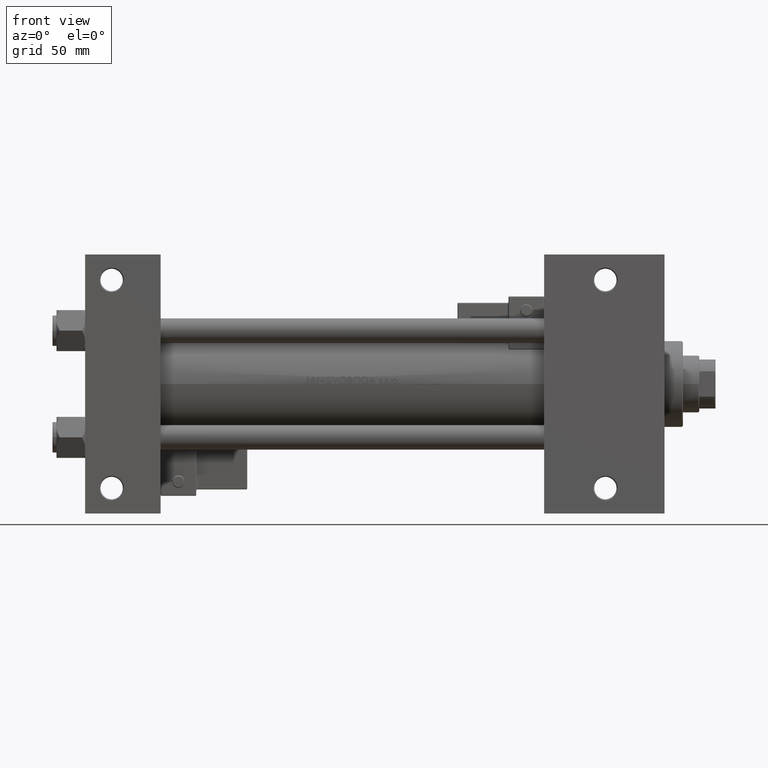
[diagram: clean part render]
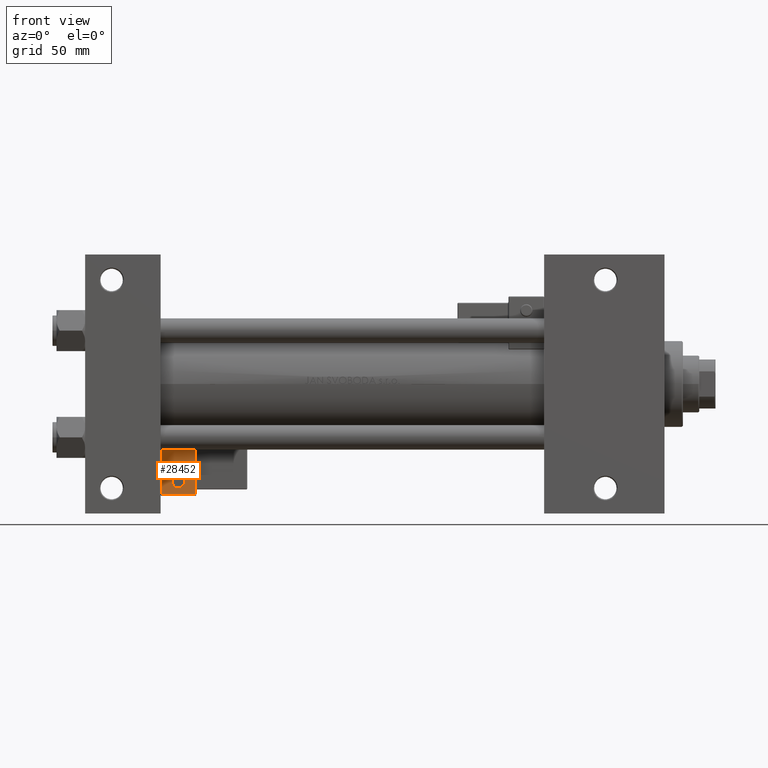
[diagram: same view with one face highlighted and labeled with its STEP entity id]
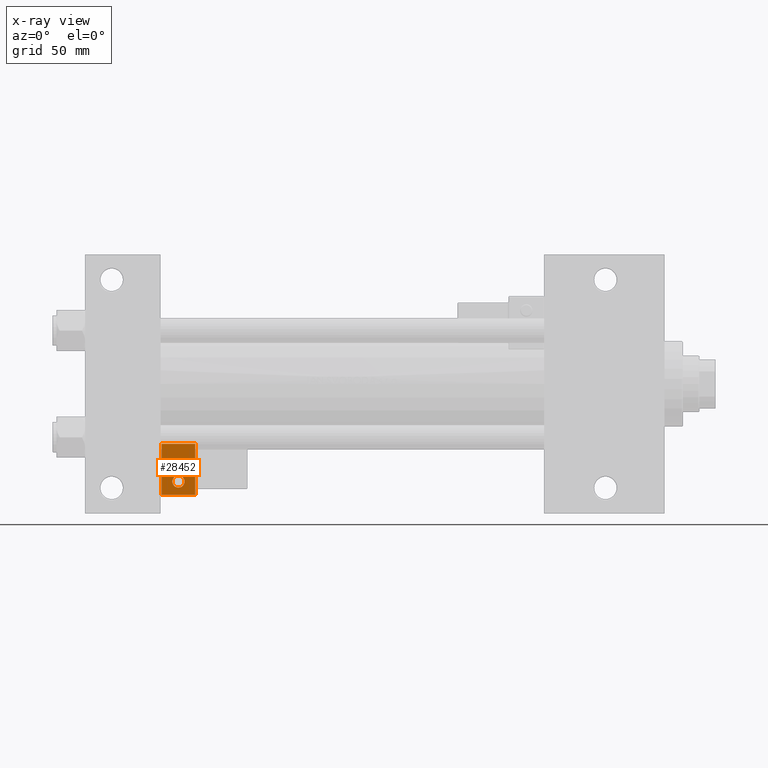
[diagram: x-ray of the same camera — body ghosted, the highlighted face saturated]
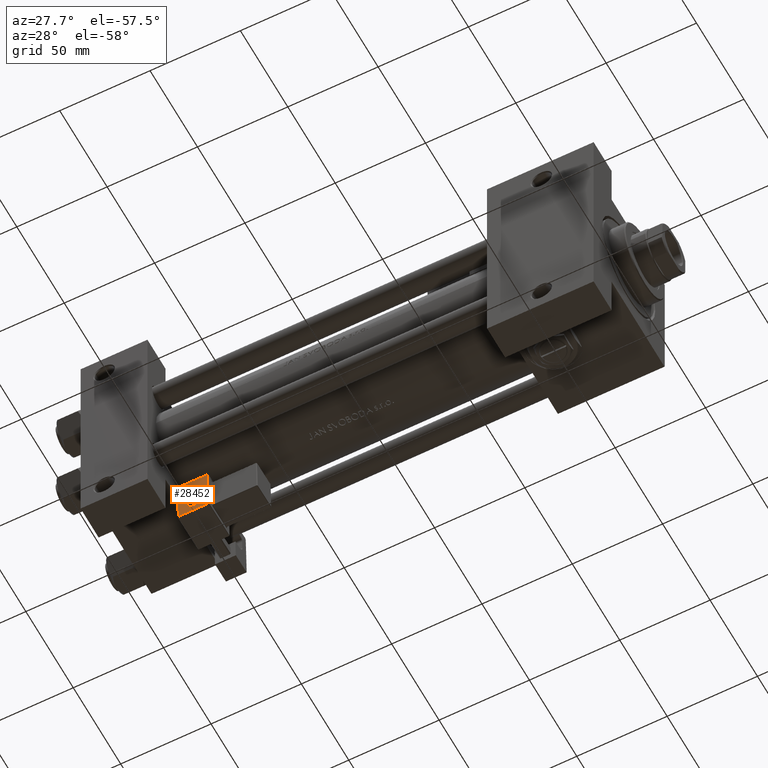
[diagram: same view with one face highlighted and labeled with its STEP entity id]
A machine part, front view. The second image highlights one B-rep face of the part: STEP entity #28452.
The next image is the same camera in x-ray: the body ghosted, the highlighted face saturated — about 0% of this face is hidden behind the body in this view.
A second angle (auxiliary view) of the same face is appended — the face is thin or edge-on in the first view.
In plain terms, the highlighted planar face has unit normal (0, 0.9994, 0.0353).
Its self-contained STEP definition (entity closure, byte-faithful):
#828 = CARTESIAN_POINT ( 'NONE',  ( 8.250000000000000000, -39.75000000000000000, 24.50000000000000000 ) ) ;
#1288 = ORIENTED_EDGE ( 'NONE', *, *, #46891, .T. ) ;
#1475 = AXIS2_PLACEMENT_3D ( 'NONE', #46820, #14535, #27021 ) ;
#2125 = EDGE_CURVE ( 'NONE', #7442, #15046, #28926, .T. ) ;
#2240 = DIRECTION ( 'NONE',  ( -1.000000000000000000, 0.000000000000000000, 1.982541115402065110E-16 ) ) ;
#2354 = LINE ( 'NONE', #6523, #48543 ) ;
#3287 = CARTESIAN_POINT ( 'NONE',  ( 0.000000000000000000, -39.75000000000000000, 0.000000000000000000 ) ) ;
#5459 = EDGE_CURVE ( 'NONE', #15046, #7442, #31666, .T. ) ;
#5887 = CARTESIAN_POINT ( 'NONE',  ( 4.857225732735059864E-15, -39.75000000000000000, 24.50000000000000000 ) ) ;
#6149 = LINE ( 'NONE', #5887, #11067 ) ;
#6523 = CARTESIAN_POINT ( 'NONE',  ( 0.000000000000000000, -39.75000000000000000, -0.5000000000000002220 ) ) ;
#6916 = LINE ( 'NONE', #31161, #11918 ) ;
#7442 = VERTEX_POINT ( 'NONE', #32532 ) ;
#8706 = VERTEX_POINT ( 'NONE', #12936 ) ;
#9316 = VERTEX_POINT ( 'NONE', #45052 ) ;
#10141 = EDGE_LOOP ( 'NONE', ( #40788, #24419, #1288, #16767 ) ) ;
#10163 = DIRECTION ( 'NONE',  ( 1.000000000000000000, 0.000000000000000000, 0.000000000000000000 ) ) ;
#11067 = VECTOR ( 'NONE', #2240, 1000.000000000000000 ) ;
#11728 = EDGE_CURVE ( 'NONE', #19395, #28036, #6149, .T. ) ;
#11817 = CARTESIAN_POINT ( 'NONE',  ( -4.336808689942017736E-16, -39.75000000000000000, 6.000000000000001776 ) ) ;
#11918 = VECTOR ( 'NONE', #27240, 1000.000000000000000 ) ;
#12936 = CARTESIAN_POINT ( 'NONE',  ( -8.250000000000003553, -39.75000000000000000, -0.5000000000000002220 ) ) ;
#13684 = LINE ( 'NONE', #17331, #37183 ) ;
#14083 = ORIENTED_EDGE ( 'NONE', *, *, #5459, .F. ) ;
#14535 = DIRECTION ( 'NONE',  ( -0.000000000000000000, -1.000000000000000000, -0.000000000000000000 ) ) ;
#15046 = VERTEX_POINT ( 'NONE', #28389 ) ;
#15244 = DIRECTION ( 'NONE',  ( 0.000000000000000000, 0.000000000000000000, 1.000000000000000000 ) ) ;
#16767 = ORIENTED_EDGE ( 'NONE', *, *, #24524, .T. ) ;
#17331 = CARTESIAN_POINT ( 'NONE',  ( 8.250000000000003553, -39.75000000000000000, 1.100882205908358986E-15 ) ) ;
#19190 = DIRECTION ( 'NONE',  ( 0.000000000000000000, 1.000000000000000000, 0.000000000000000000 ) ) ;
#19395 = VERTEX_POINT ( 'NONE', #828 ) ;
#20714 = AXIS2_PLACEMENT_3D ( 'NONE', #3287, #19190, #46812 ) ;
#23040 = EDGE_LOOP ( 'NONE', ( #14083, #25296 ) ) ;
#24419 = ORIENTED_EDGE ( 'NONE', *, *, #48449, .T. ) ;
#24524 = EDGE_CURVE ( 'NONE', #9316, #19395, #13684, .T. ) ;
#25296 = ORIENTED_EDGE ( 'NONE', *, *, #2125, .F. ) ;
#26817 = CARTESIAN_POINT ( 'NONE',  ( -8.250000000000000000, -39.75000000000000000, 24.50000000000000355 ) ) ;
#27021 = DIRECTION ( 'NONE',  ( 0.000000000000000000, 0.000000000000000000, 1.000000000000000000 ) ) ;
#27240 = DIRECTION ( 'NONE',  ( -1.334402673828313093E-16, 0.000000000000000000, -1.000000000000000000 ) ) ;
#27732 = DIRECTION ( 'NONE',  ( -0.000000000000000000, -1.000000000000000000, -0.000000000000000000 ) ) ;
#28036 = VERTEX_POINT ( 'NONE', #26817 ) ;
#28389 = CARTESIAN_POINT ( 'NONE',  ( -4.336808689942017736E-16, -39.75000000000000000, 9.000000000000001776 ) ) ;
#28452 = ADVANCED_FACE ( 'NONE', ( #47322, #31182 ), #30920, .F. ) ;
#28926 = CIRCLE ( 'NONE', #1475, 2.999999999999999112 ) ;
#30920 = PLANE ( 'NONE',  #20714 ) ;
#31161 = CARTESIAN_POINT ( 'NONE',  ( -8.250000000000003553, -39.75000000000000000, 1.100882205908358788E-15 ) ) ;
#31182 = FACE_BOUND ( 'NONE', #23040, .T. ) ;
#31666 = CIRCLE ( 'NONE', #38335, 2.999999999999999112 ) ;
#32532 = CARTESIAN_POINT ( 'NONE',  ( -6.628682924999581145E-17, -39.75000000000000000, 3.000000000000001776 ) ) ;
#36604 = DIRECTION ( 'NONE',  ( -1.334402673828313339E-16, 0.000000000000000000, 1.000000000000000000 ) ) ;
#37183 = VECTOR ( 'NONE', #36604, 1000.000000000000000 ) ;
#38335 = AXIS2_PLACEMENT_3D ( 'NONE', #11817, #27732, #15244 ) ;
#40788 = ORIENTED_EDGE ( 'NONE', *, *, #11728, .T. ) ;
#45052 = CARTESIAN_POINT ( 'NONE',  ( 8.250000000000003553, -39.75000000000000000, -0.5000000000000002220 ) ) ;
#46812 = DIRECTION ( 'NONE',  ( 0.000000000000000000, -0.000000000000000000, 1.000000000000000000 ) ) ;
#46820 = CARTESIAN_POINT ( 'NONE',  ( -4.336808689942017736E-16, -39.75000000000000000, 6.000000000000001776 ) ) ;
#46891 = EDGE_CURVE ( 'NONE', #8706, #9316, #2354, .T. ) ;
#47322 = FACE_OUTER_BOUND ( 'NONE', #10141, .T. ) ;
#48449 = EDGE_CURVE ( 'NONE', #28036, #8706, #6916, .T. ) ;
#48543 = VECTOR ( 'NONE', #10163, 1000.000000000000000 ) ;